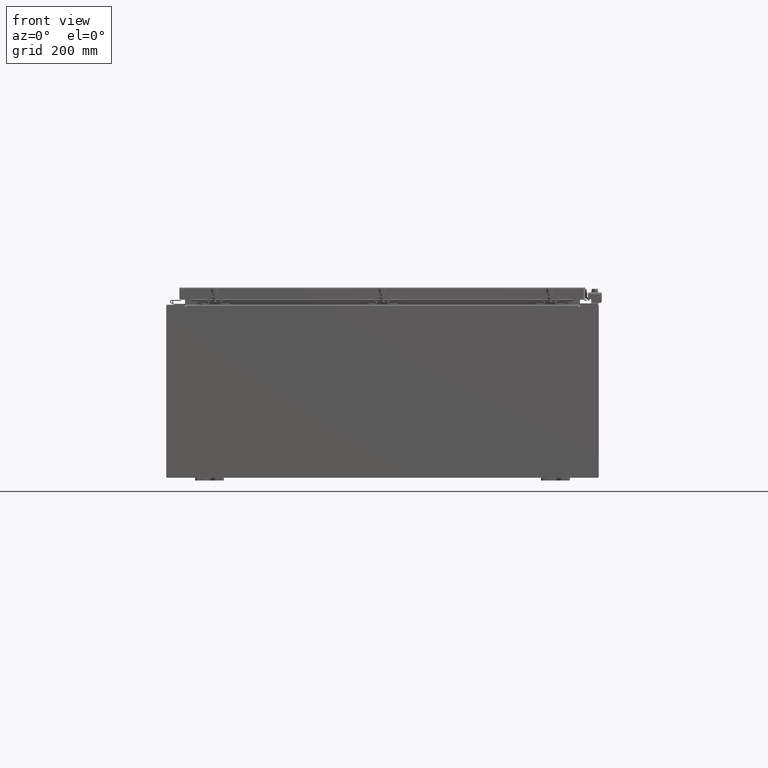
[diagram: clean part render]
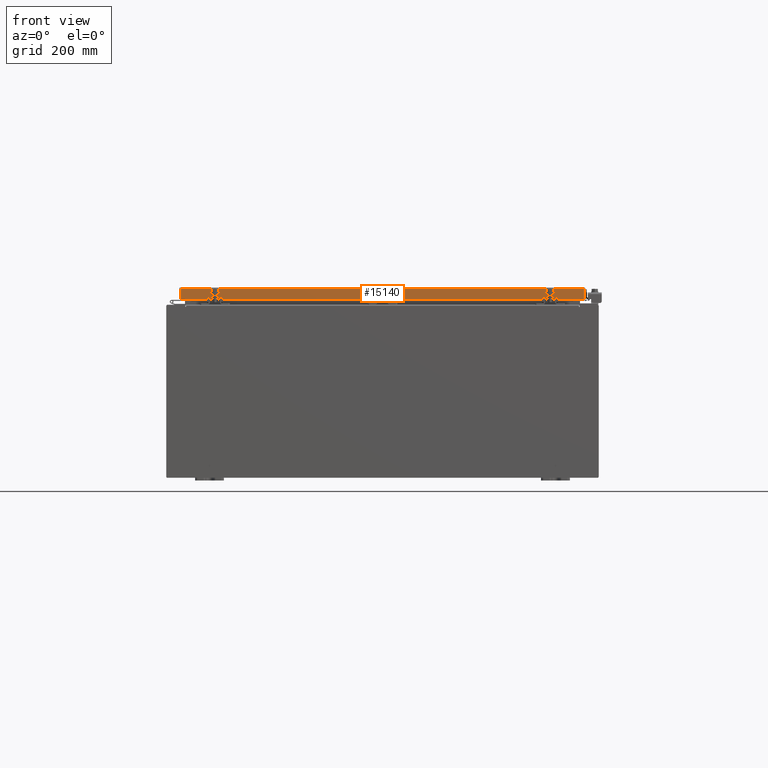
[diagram: same view with one face highlighted and labeled with its STEP entity id]
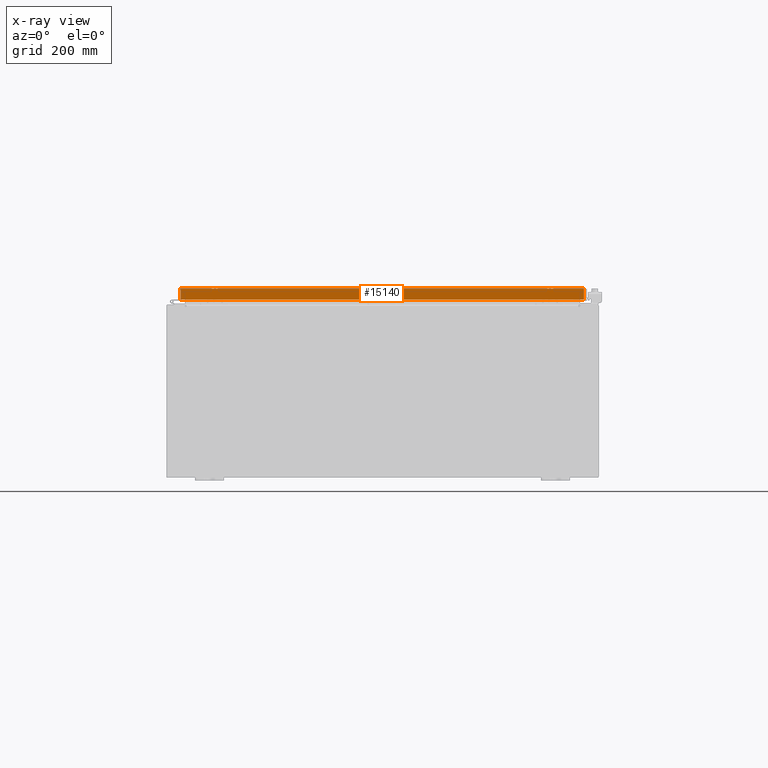
[diagram: x-ray of the same camera — body ghosted, the highlighted face saturated]
A machine part, front view. The second image highlights one B-rep face of the part: STEP entity #15140.
The next image is the same camera in x-ray: the body ghosted, the highlighted face saturated — about 0% of this face is hidden behind the body in this view.
In plain terms, the highlighted planar face has unit normal (-0, 1, -0).
Its self-contained STEP definition (entity closure, byte-faithful):
#604 = CARTESIAN_POINT ( 'NONE',  ( 13.23915786437626000, -17.09399999999999800, -0.8500000000000006400 ) ) ;
#2250 = CARTESIAN_POINT ( 'NONE',  ( -13.98915786437627800, -17.09400000000000100, -0.8499999999999963100 ) ) ;
#2504 = VERTEX_POINT ( 'NONE', #34894 ) ;
#3425 = LINE ( 'NONE', #25383, #37902 ) ;
#3515 = DIRECTION ( 'NONE',  ( -1.000000000000000000, 4.379057701015054300E-047, 1.212817869044015600E-016 ) ) ;
#4629 = VECTOR ( 'NONE', #7789, 39.37007874015748100 ) ;
#5113 = LINE ( 'NONE', #23505, #12904 ) ;
#5961 = DIRECTION ( 'NONE',  ( 1.000000000000000000, 3.418789178101959700E-031, -9.318824769679573900E-046 ) ) ;
#7789 = DIRECTION ( 'NONE',  ( -0.0000000000000000000, -2.818880942772360100E-015, -1.000000000000000000 ) ) ;
#8195 = CARTESIAN_POINT ( 'NONE',  ( -13.98915786437627800, -17.09400000000000100, -0.08770000000000007000 ) ) ;
#8776 = DIRECTION ( 'NONE',  ( -1.000000000000000000, 0.0000000000000000000, 0.0000000000000000000 ) ) ;
#11287 = VECTOR ( 'NONE', #15539, 39.37007874015748100 ) ;
#12155 = CARTESIAN_POINT ( 'NONE',  ( -13.98915786437627600, -17.09400000000000100, 4.844676449176230700E-014 ) ) ;
#12311 = LINE ( 'NONE', #12155, #11287 ) ;
#12663 = AXIS2_PLACEMENT_3D ( 'NONE', #34544, #21315, #38091 ) ;
#12904 = VECTOR ( 'NONE', #3515, 39.37007874015748100 ) ;
#13480 = VERTEX_POINT ( 'NONE', #604 ) ;
#13799 = VERTEX_POINT ( 'NONE', #2250 ) ;
#14952 = CARTESIAN_POINT ( 'NONE',  ( -13.23915786437627800, -17.09399999999999800, -0.8500000000000006400 ) ) ;
#15140 = ADVANCED_FACE ( 'NONE', ( #18277 ), #31339, .F. ) ;
#15539 = DIRECTION ( 'NONE',  ( 0.0000000000000000000, -2.818880942772360100E-015, -1.000000000000000000 ) ) ;
#18024 = EDGE_CURVE ( 'NONE', #42570, #13799, #3425, .T. ) ;
#18157 = VECTOR ( 'NONE', #8776, 39.37007874015748100 ) ;
#18277 = FACE_OUTER_BOUND ( 'NONE', #40936, .T. ) ;
#18500 = VECTOR ( 'NONE', #5961, 39.37007874015748100 ) ;
#19437 = ORIENTED_EDGE ( 'NONE', *, *, #34268, .F. ) ;
#21315 = DIRECTION ( 'NONE',  ( -3.418789178101958800E-031, 1.000000000000000000, -2.818880942772360100E-015 ) ) ;
#21964 = ORIENTED_EDGE ( 'NONE', *, *, #41040, .F. ) ;
#23505 = CARTESIAN_POINT ( 'NONE',  ( 14.07799999999999400, -17.09400000000000100, -0.8499999999999996400 ) ) ;
#24445 = CARTESIAN_POINT ( 'NONE',  ( 13.98915786437626400, -17.09400000000000100, -0.07469999999999978000 ) ) ;
#25383 = CARTESIAN_POINT ( 'NONE',  ( 14.07799999999999400, -17.09400000000000100, -0.8499999999999996400 ) ) ;
#26417 = EDGE_CURVE ( 'NONE', #38130, #13799, #12311, .T. ) ;
#27369 = LINE ( 'NONE', #35911, #18500 ) ;
#27756 = DIRECTION ( 'NONE',  ( -1.000000000000000000, 4.379057701015054300E-047, 1.212817869044015600E-016 ) ) ;
#30559 = EDGE_CURVE ( 'NONE', #38130, #2504, #27369, .T. ) ;
#31232 = LINE ( 'NONE', #24445, #4629 ) ;
#31339 = PLANE ( 'NONE',  #12663 ) ;
#33280 = VERTEX_POINT ( 'NONE', #39925 ) ;
#34268 = EDGE_CURVE ( 'NONE', #13480, #42570, #35936, .T. ) ;
#34544 = CARTESIAN_POINT ( 'NONE',  ( 5.844078221047488100E-030, -17.09400000000000100, 4.844676449176230700E-014 ) ) ;
#34894 = CARTESIAN_POINT ( 'NONE',  ( 13.98915786437626500, -17.09400000000000100, -0.08770000000000007000 ) ) ;
#35540 = CARTESIAN_POINT ( 'NONE',  ( 13.23915786437626000, -17.09399999999999800, -0.8500000000000006400 ) ) ;
#35625 = ORIENTED_EDGE ( 'NONE', *, *, #30559, .F. ) ;
#35911 = CARTESIAN_POINT ( 'NONE',  ( 14.07799999999999400, -17.09400000000000100, -0.08770000000000007000 ) ) ;
#35936 = LINE ( 'NONE', #35540, #18157 ) ;
#36218 = EDGE_CURVE ( 'NONE', #33280, #13480, #5113, .T. ) ;
#37902 = VECTOR ( 'NONE', #27756, 39.37007874015748100 ) ;
#38091 = DIRECTION ( 'NONE',  ( 0.0000000000000000000, 2.818880942772360100E-015, 1.000000000000000000 ) ) ;
#38130 = VERTEX_POINT ( 'NONE', #8195 ) ;
#38986 = ORIENTED_EDGE ( 'NONE', *, *, #36218, .F. ) ;
#39153 = ORIENTED_EDGE ( 'NONE', *, *, #26417, .T. ) ;
#39925 = CARTESIAN_POINT ( 'NONE',  ( 13.98915786437626400, -17.09400000000000100, -0.8499999999999996400 ) ) ;
#40936 = EDGE_LOOP ( 'NONE', ( #35625, #39153, #41389, #19437, #38986, #21964 ) ) ;
#41040 = EDGE_CURVE ( 'NONE', #2504, #33280, #31232, .T. ) ;
#41389 = ORIENTED_EDGE ( 'NONE', *, *, #18024, .F. ) ;
#42570 = VERTEX_POINT ( 'NONE', #14952 ) ;